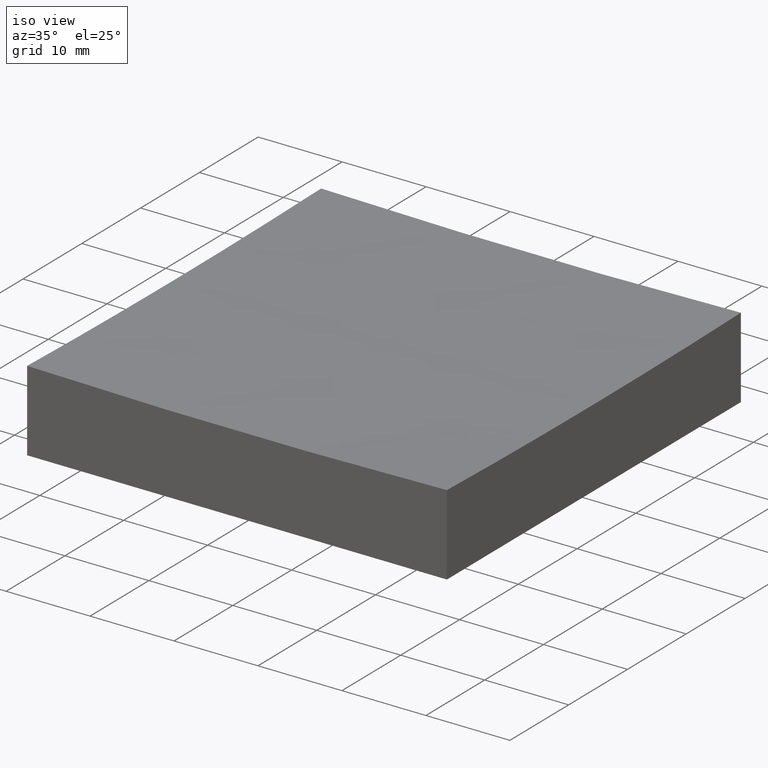
[diagram: clean part render]
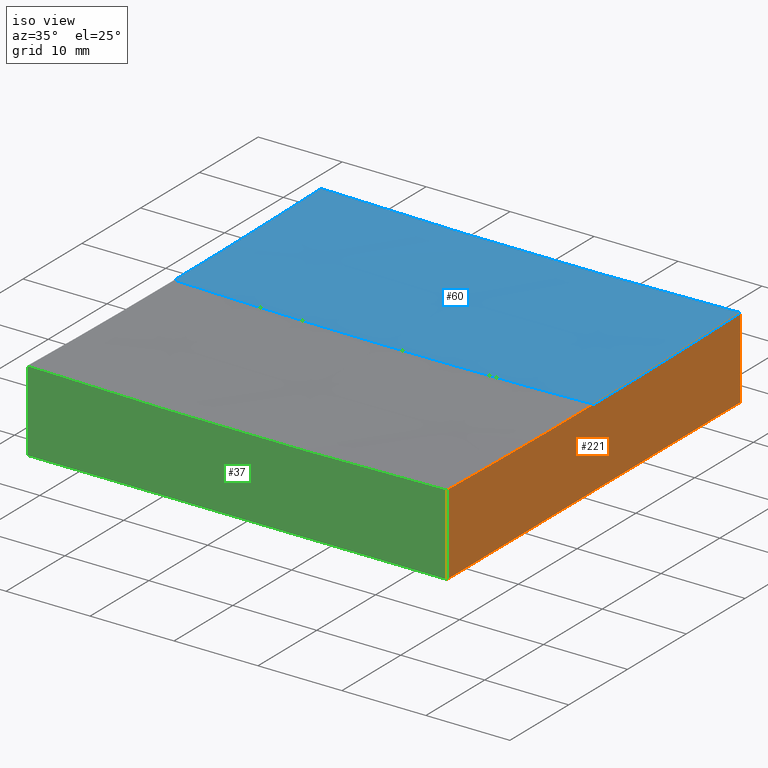
[diagram: same view with three faces highlighted in distinct colors, each labeled with its STEP entity id]
A machine part, iso view with three faces highlighted in distinct colors.
Their STEP definitions:

[orange] entity #221 — the highlighted planar face has unit normal (1, 0, -0).
#7 = EDGE_LOOP ( 'NONE', ( #17, #116, #120, #41, #133 ) ) ;
#8 = CARTESIAN_POINT ( 'NONE',  ( 25.00000000000000000, -25.00000000000000711, 50.00000000000000000 ) ) ;
#9 = DIRECTION ( 'NONE',  ( 6.938893903907228378E-17, -1.000000000000000000, 0.0000000000000000000 ) ) ;
#11 = EDGE_CURVE ( 'NONE', #220, #94, #45, .T. ) ;
#17 = ORIENTED_EDGE ( 'NONE', *, *, #11, .F. ) ;
#22 = VERTEX_POINT ( 'NONE', #80 ) ;
#24 = VECTOR ( 'NONE', #81, 1000.000000000000000 ) ;
#25 = AXIS2_PLACEMENT_3D ( 'NONE', #111, #234, #131 ) ;
#30 = CARTESIAN_POINT ( 'NONE',  ( 24.99999999999999645, 9.629649721936179265E-32, 9.312548843389723885 ) ) ;
#39 = FACE_OUTER_BOUND ( 'NONE', #7, .T. ) ;
#40 = AXIS2_PLACEMENT_3D ( 'NONE', #54, #148, #145 ) ;
#41 = ORIENTED_EDGE ( 'NONE', *, *, #51, .F. ) ;
#45 = CIRCLE ( 'NONE', #160, 999.6874511566102228 ) ;
#49 = LINE ( 'NONE', #203, #102 ) ;
#51 = EDGE_CURVE ( 'NONE', #22, #66, #56, .T. ) ;
#54 = CARTESIAN_POINT ( 'NONE',  ( 24.99999999999999645, 24.99999999999999645, 50.00000000000000000 ) ) ;
#56 = LINE ( 'NONE', #114, #24 ) ;
#66 = VERTEX_POINT ( 'NONE', #69 ) ;
#69 = CARTESIAN_POINT ( 'NONE',  ( 24.99999999999999645, 24.99999999999999645, 0.0000000000000000000 ) ) ;
#74 = EDGE_CURVE ( 'NONE', #66, #243, #49, .T. ) ;
#80 = CARTESIAN_POINT ( 'NONE',  ( 24.99999999999999645, 24.99999999999999645, 9.625195434665666738 ) ) ;
#81 = DIRECTION ( 'NONE',  ( -0.0000000000000000000, -0.0000000000000000000, -1.000000000000000000 ) ) ;
#90 = DIRECTION ( 'NONE',  ( -0.0000000000000000000, -0.0000000000000000000, -1.000000000000000000 ) ) ;
#94 = VERTEX_POINT ( 'NONE', #30 ) ;
#95 = DIRECTION ( 'NONE',  ( -6.941063325221421144E-17, 1.000000000000000000, 0.0000000000000000000 ) ) ;
#102 = VECTOR ( 'NONE', #9, 1000.000000000000000 ) ;
#110 = PLANE ( 'NONE',  #40 ) ;
#111 = CARTESIAN_POINT ( 'NONE',  ( 24.99999999999999645, 1.734723475976798220E-15, 1008.999999999999886 ) ) ;
#113 = CARTESIAN_POINT ( 'NONE',  ( 25.00000000000000000, -25.00000000000000711, 0.0000000000000000000 ) ) ;
#114 = CARTESIAN_POINT ( 'NONE',  ( 24.99999999999999645, 24.99999999999999645, 50.00000000000000000 ) ) ;
#115 = CARTESIAN_POINT ( 'NONE',  ( 24.99999999999999645, 1.734723475976798220E-15, 1008.999999999999886 ) ) ;
#116 = ORIENTED_EDGE ( 'NONE', *, *, #147, .T. ) ;
#120 = ORIENTED_EDGE ( 'NONE', *, *, #74, .F. ) ;
#131 = DIRECTION ( 'NONE',  ( -6.941063325221421144E-17, 1.000000000000000000, 0.0000000000000000000 ) ) ;
#133 = ORIENTED_EDGE ( 'NONE', *, *, #201, .F. ) ;
#145 = DIRECTION ( 'NONE',  ( -6.938893903907228378E-17, 1.000000000000000000, 0.0000000000000000000 ) ) ;
#147 = EDGE_CURVE ( 'NONE', #220, #243, #164, .T. ) ;
#148 = DIRECTION ( 'NONE',  ( 1.000000000000000000, 6.938893903907228378E-17, -0.0000000000000000000 ) ) ;
#153 = VECTOR ( 'NONE', #90, 1000.000000000000000 ) ;
#160 = AXIS2_PLACEMENT_3D ( 'NONE', #115, #200, #95 ) ;
#164 = LINE ( 'NONE', #8, #153 ) ;
#200 = DIRECTION ( 'NONE',  ( 1.000000000000000000, 6.938893903907228378E-17, -0.0000000000000000000 ) ) ;
#201 = EDGE_CURVE ( 'NONE', #94, #22, #228, .T. ) ;
#203 = CARTESIAN_POINT ( 'NONE',  ( 24.99999999999999645, 24.99999999999999645, 0.0000000000000000000 ) ) ;
#218 = CARTESIAN_POINT ( 'NONE',  ( 25.00000000000000000, -25.00000000000000711, 9.625195434665666738 ) ) ;
#220 = VERTEX_POINT ( 'NONE', #218 ) ;
#221 = ADVANCED_FACE ( 'NONE', ( #39 ), #110, .T. ) ;
#228 = CIRCLE ( 'NONE', #25, 999.6874511566102228 ) ;
#234 = DIRECTION ( 'NONE',  ( 1.000000000000000000, 6.938893903907228378E-17, -0.0000000000000000000 ) ) ;
#243 = VERTEX_POINT ( 'NONE', #113 ) ;

[blue] entity #60 — the highlighted spherical surface has radius 1000 mm.
#4 = AXIS2_PLACEMENT_3D ( 'NONE', #205, #230, #142 ) ;
#5 = ORIENTED_EDGE ( 'NONE', *, *, #201, .T. ) ;
#10 = CARTESIAN_POINT ( 'NONE',  ( -25.00000000000000355, 3.061616997868389748E-15, 9.312548843389723885 ) ) ;
#13 = VERTEX_POINT ( 'NONE', #21 ) ;
#21 = CARTESIAN_POINT ( 'NONE',  ( 1.115058713056187768E-13, 0.0000000000000000000, 9.000000000000007105 ) ) ;
#22 = VERTEX_POINT ( 'NONE', #80 ) ;
#25 = AXIS2_PLACEMENT_3D ( 'NONE', #111, #234, #131 ) ;
#30 = CARTESIAN_POINT ( 'NONE',  ( 24.99999999999999645, 9.629649721936179265E-32, 9.312548843389723885 ) ) ;
#31 = DIRECTION ( 'NONE',  ( 0.0000000000000000000, 1.000000000000000000, 0.0000000000000000000 ) ) ;
#42 = ORIENTED_EDGE ( 'NONE', *, *, #125, .T. ) ;
#47 = DIRECTION ( 'NONE',  ( -1.000000000000000000, 1.224646799147353207E-16, 0.0000000000000000000 ) ) ;
#50 = CARTESIAN_POINT ( 'NONE',  ( -25.00000000000000355, -1.734723475976815969E-15, 1008.999999999999886 ) ) ;
#60 = ADVANCED_FACE ( 'NONE', ( #71 ), #181, .F. ) ;
#65 = CARTESIAN_POINT ( 'NONE',  ( 1.235668620339679159E-13, 0.0000000000000000000, 1008.999999999999886 ) ) ;
#67 = EDGE_CURVE ( 'NONE', #13, #77, #224, .T. ) ;
#71 = FACE_OUTER_BOUND ( 'NONE', #219, .T. ) ;
#77 = VERTEX_POINT ( 'NONE', #10 ) ;
#80 = CARTESIAN_POINT ( 'NONE',  ( 24.99999999999999645, 24.99999999999999645, 9.625195434665666738 ) ) ;
#89 = CARTESIAN_POINT ( 'NONE',  ( 1.235668620339679159E-13, 24.99999999999999645, 1008.999999999999886 ) ) ;
#94 = VERTEX_POINT ( 'NONE', #30 ) ;
#101 = DIRECTION ( 'NONE',  ( 0.0000000000000000000, 0.0000000000000000000, -1.000000000000000000 ) ) ;
#111 = CARTESIAN_POINT ( 'NONE',  ( 24.99999999999999645, 1.734723475976798220E-15, 1008.999999999999886 ) ) ;
#118 = AXIS2_PLACEMENT_3D ( 'NONE', #89, #31, #227 ) ;
#124 = DIRECTION ( 'NONE',  ( 1.000000000000000000, 6.938893903907228378E-17, -0.0000000000000000000 ) ) ;
#125 = EDGE_CURVE ( 'NONE', #13, #94, #187, .T. ) ;
#130 = CIRCLE ( 'NONE', #202, 999.6874511566102228 ) ;
#131 = DIRECTION ( 'NONE',  ( -6.941063325221421144E-17, 1.000000000000000000, 0.0000000000000000000 ) ) ;
#142 = DIRECTION ( 'NONE',  ( 1.000000000000000000, 0.0000000000000000000, 0.0000000000000000000 ) ) ;
#143 = EDGE_CURVE ( 'NONE', #22, #237, #198, .T. ) ;
#161 = DIRECTION ( 'NONE',  ( -6.941063325221421144E-17, 1.000000000000000000, 0.0000000000000000000 ) ) ;
#165 = ORIENTED_EDGE ( 'NONE', *, *, #143, .T. ) ;
#180 = EDGE_CURVE ( 'NONE', #77, #237, #130, .T. ) ;
#181 = SPHERICAL_SURFACE ( 'NONE', #4, 999.9999999999998863 ) ;
#184 = DIRECTION ( 'NONE',  ( 0.0000000000000000000, -1.000000000000000000, -0.0000000000000000000 ) ) ;
#187 = CIRCLE ( 'NONE', #208, 999.9999999999998863 ) ;
#194 = ORIENTED_EDGE ( 'NONE', *, *, #180, .F. ) ;
#195 = ORIENTED_EDGE ( 'NONE', *, *, #67, .F. ) ;
#198 = CIRCLE ( 'NONE', #118, 999.6874511566101091 ) ;
#201 = EDGE_CURVE ( 'NONE', #94, #22, #228, .T. ) ;
#202 = AXIS2_PLACEMENT_3D ( 'NONE', #50, #124, #161 ) ;
#205 = CARTESIAN_POINT ( 'NONE',  ( 1.235668620339679159E-13, 0.0000000000000000000, 1008.999999999999886 ) ) ;
#207 = CARTESIAN_POINT ( 'NONE',  ( 1.235668620339679159E-13, 0.0000000000000000000, 1008.999999999999886 ) ) ;
#208 = AXIS2_PLACEMENT_3D ( 'NONE', #207, #184, #101 ) ;
#216 = CARTESIAN_POINT ( 'NONE',  ( -25.00000000000000711, 24.99999999999999645, 9.625195434665666738 ) ) ;
#219 = EDGE_LOOP ( 'NONE', ( #195, #42, #5, #165, #194 ) ) ;
#224 = CIRCLE ( 'NONE', #246, 999.9999999999998863 ) ;
#227 = DIRECTION ( 'NONE',  ( 0.0000000000000000000, 0.0000000000000000000, 1.000000000000000000 ) ) ;
#228 = CIRCLE ( 'NONE', #25, 999.6874511566102228 ) ;
#230 = DIRECTION ( 'NONE',  ( -0.0000000000000000000, 1.000000000000000000, 0.0000000000000000000 ) ) ;
#234 = DIRECTION ( 'NONE',  ( 1.000000000000000000, 6.938893903907228378E-17, -0.0000000000000000000 ) ) ;
#237 = VERTEX_POINT ( 'NONE', #216 ) ;
#242 = DIRECTION ( 'NONE',  ( 1.224646799147353207E-16, 1.000000000000000000, -8.975844282311158940E-33 ) ) ;
#246 = AXIS2_PLACEMENT_3D ( 'NONE', #65, #242, #47 ) ;

[green] entity #37 — the highlighted planar face has unit normal (0, 1, 0).
#2 = CARTESIAN_POINT ( 'NONE',  ( -25.00000000000000000, -25.00000000000000711, 0.0000000000000000000 ) ) ;
#6 = EDGE_CURVE ( 'NONE', #138, #243, #117, .T. ) ;
#8 = CARTESIAN_POINT ( 'NONE',  ( 25.00000000000000000, -25.00000000000000711, 50.00000000000000000 ) ) ;
#32 = AXIS2_PLACEMENT_3D ( 'NONE', #235, #172, #44 ) ;
#33 = CARTESIAN_POINT ( 'NONE',  ( -25.00000000000000000, -25.00000000000000711, 9.625195434665666738 ) ) ;
#37 = ADVANCED_FACE ( 'NONE', ( #150 ), #152, .F. ) ;
#44 = DIRECTION ( 'NONE',  ( 0.0000000000000000000, -0.0000000000000000000, 1.000000000000000000 ) ) ;
#46 = ORIENTED_EDGE ( 'NONE', *, *, #147, .F. ) ;
#48 = DIRECTION ( 'NONE',  ( 0.0000000000000000000, 0.0000000000000000000, 1.000000000000000000 ) ) ;
#58 = DIRECTION ( 'NONE',  ( 1.000000000000000000, 0.0000000000000000000, 0.0000000000000000000 ) ) ;
#73 = CARTESIAN_POINT ( 'NONE',  ( -25.00000000000000000, -25.00000000000000711, 50.00000000000000000 ) ) ;
#83 = VECTOR ( 'NONE', #159, 1000.000000000000000 ) ;
#90 = DIRECTION ( 'NONE',  ( -0.0000000000000000000, -0.0000000000000000000, -1.000000000000000000 ) ) ;
#91 = CIRCLE ( 'NONE', #169, 999.6874511566101091 ) ;
#113 = CARTESIAN_POINT ( 'NONE',  ( 25.00000000000000000, -25.00000000000000711, 0.0000000000000000000 ) ) ;
#117 = LINE ( 'NONE', #2, #128 ) ;
#128 = VECTOR ( 'NONE', #58, 1000.000000000000000 ) ;
#138 = VERTEX_POINT ( 'NONE', #249 ) ;
#140 = CARTESIAN_POINT ( 'NONE',  ( 1.235668620339679159E-13, -25.00000000000000711, 1008.999999999999886 ) ) ;
#144 = LINE ( 'NONE', #73, #83 ) ;
#147 = EDGE_CURVE ( 'NONE', #220, #243, #164, .T. ) ;
#150 = FACE_OUTER_BOUND ( 'NONE', #247, .T. ) ;
#151 = VERTEX_POINT ( 'NONE', #33 ) ;
#152 = PLANE ( 'NONE',  #32 ) ;
#153 = VECTOR ( 'NONE', #90, 1000.000000000000000 ) ;
#155 = EDGE_CURVE ( 'NONE', #151, #138, #144, .T. ) ;
#159 = DIRECTION ( 'NONE',  ( -0.0000000000000000000, -0.0000000000000000000, -1.000000000000000000 ) ) ;
#164 = LINE ( 'NONE', #8, #153 ) ;
#169 = AXIS2_PLACEMENT_3D ( 'NONE', #140, #229, #48 ) ;
#172 = DIRECTION ( 'NONE',  ( 0.0000000000000000000, 1.000000000000000000, 0.0000000000000000000 ) ) ;
#175 = ORIENTED_EDGE ( 'NONE', *, *, #199, .T. ) ;
#197 = ORIENTED_EDGE ( 'NONE', *, *, #155, .T. ) ;
#199 = EDGE_CURVE ( 'NONE', #220, #151, #91, .T. ) ;
#218 = CARTESIAN_POINT ( 'NONE',  ( 25.00000000000000000, -25.00000000000000711, 9.625195434665666738 ) ) ;
#220 = VERTEX_POINT ( 'NONE', #218 ) ;
#229 = DIRECTION ( 'NONE',  ( 0.0000000000000000000, 1.000000000000000000, 0.0000000000000000000 ) ) ;
#235 = CARTESIAN_POINT ( 'NONE',  ( -25.00000000000000000, -25.00000000000000711, 50.00000000000000000 ) ) ;
#240 = ORIENTED_EDGE ( 'NONE', *, *, #6, .T. ) ;
#243 = VERTEX_POINT ( 'NONE', #113 ) ;
#247 = EDGE_LOOP ( 'NONE', ( #46, #175, #197, #240 ) ) ;
#249 = CARTESIAN_POINT ( 'NONE',  ( -25.00000000000000000, -25.00000000000000711, 0.0000000000000000000 ) ) ;